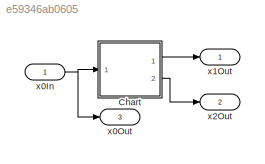
MODEL slx_e59346ab0605
KIND model
CONFIG AbsTol = auto
CONFIG EnableMultiTasking = off
CONFIG FixedStep = auto
CONFIG MaxStep = timeStepMax
CONFIG MinStep = auto
CONFIG RelTol = 1e-3
CONFIG SampleTimeConstraint = Unconstrained
CONFIG SolverName = ode15s
CONFIG StartTime = 0.0
CONFIG StopTime = timeFinal
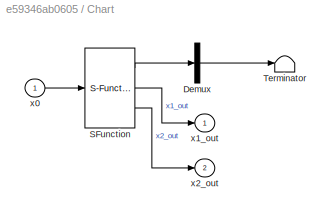
BLOCK [SubSystem] Chart
  ErrorFcn = Stateflow.Translate.translate
  PermitHierarchicalResolution = ExplicitOnly
  Ports = [1, 2]
  RequestExecContextInheritance = off
  SFBlockType = Chart
  TreatAsAtomicUnit = on
BLOCK [Demux] Chart/ Demux 
  Outputs = 1
  Ports = [1, 1]
BLOCK [S-Function] Chart/ SFunction 
  EnableBusSupport = on
  FunctionName = sf_sfun
  Parameters = a1,a2
  PortCounts = [1 3]
  Ports = [1, 3]
  SFcnIsStateOwnerBlock = off
  SFunctionDeploymentMode = off
  Tag = Stateflow S-Function 3
BLOCK [Terminator] Chart/ Terminator 
BLOCK [Inport] Chart/x0
BLOCK [Outport] Chart/x1_out
BLOCK [Outport] Chart/x2_out
  Port = 2
BLOCK [Inport] x0In
BLOCK [Outport] x0Out
  Port = 3
  SignalName = x0Out
BLOCK [Outport] x1Out
  SignalName = x1Out
BLOCK [Outport] x2Out
  Port = 2
  SignalName = x2Out
LINE Chart:1 -> x1Out:1
LINE Chart:2 -> x2Out:1
NET x0In:1 -> Chart:1, x0Out:1
note: NET lines group one-source signal fan-out (src -> all destinations, sorted); 1:1 wires keep LINE
CHART Chart states=3 transitions=10
  STATE_LABEL 'loc1\ndu: \n    x1_dot = 1.0000000 * x0 + -1.0000000 * x1 + 0.0000000 * x2 + -2.0000000 * 1;\n    x2_dot = 1.0000000 * x0 + 1.0000000 * x1 + -1.0000000 * x2 + -5.0000000 * 1;\nexit: \n    x1_out = x1;\n    x2_out = x2;\n'
  STATE_LABEL 'loc2\ndu: \n    x1_dot = 1.0000000 * x0 + -1.0000000 * x1 + -0.0000000 * x2 + -2.0000000 * 1;\n    x2_dot = 1.0000000 * x0 + 1.0000000 * x1 + -0.0000000 * x2 + 0.0000000 * 1;\nexit: \n    x1_out = x1;\n    x2_out = x2;\n'
  STATE_LABEL 'loc3\ndu: \n    x1_dot = 1.0000000 * x0 + -1.0000000 * x1 + 0.0000000 * x2 + 3.0000000 * 1;\n    x2_dot = 1.0000000 * x0 + 1.0000000 * x1 + -0.0000000 * x2 + -0.0000000 * 1;\nexit: \n    x1_out = x1;\n    x2_out = x2;\n'
CHART  states=0 transitions=0
